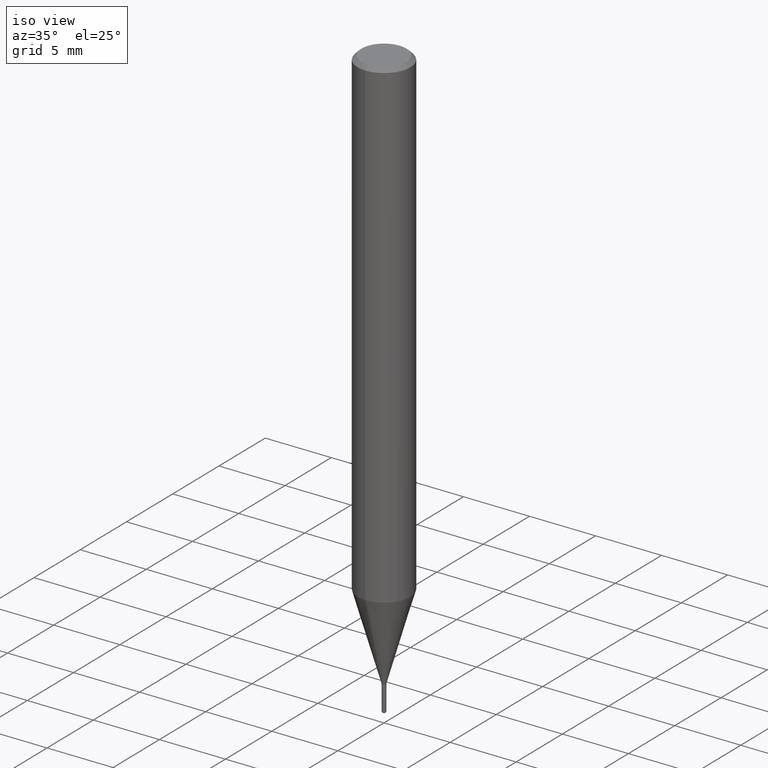
[diagram: clean part render]
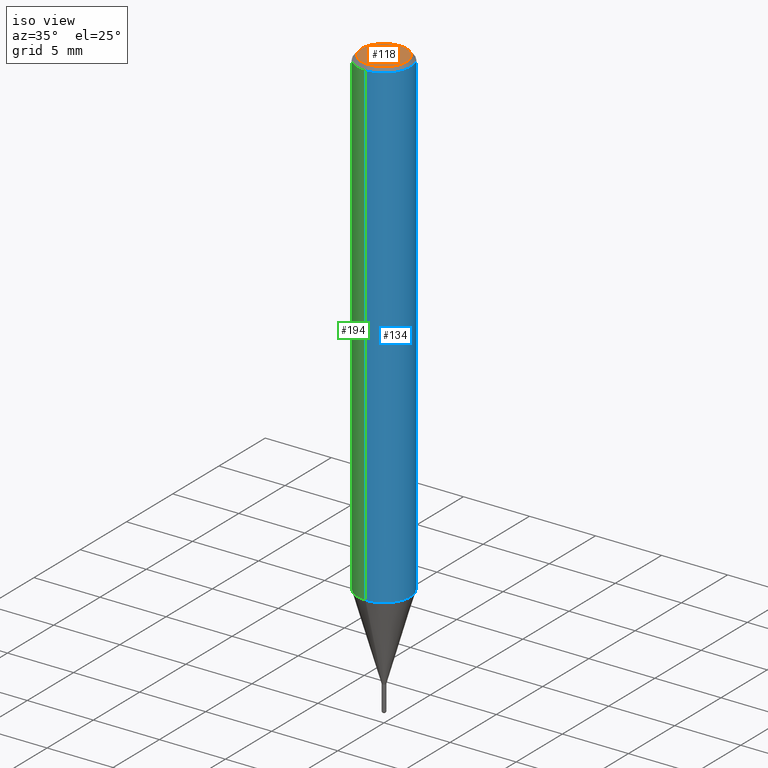
[diagram: same view with three faces highlighted in distinct colors, each labeled with its STEP entity id]
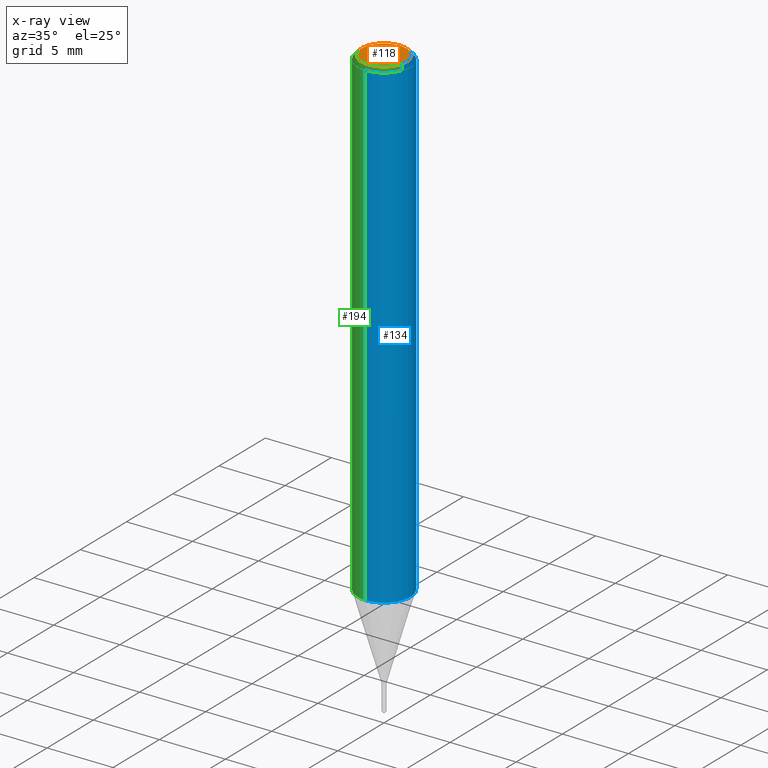
[diagram: x-ray of the same camera — body ghosted, the three highlighted faces saturated]
A machine part, iso view with three faces highlighted in distinct colors.
The next image is the same camera in x-ray (body ghosted, the three faces saturated) — at least one of them is partly hidden behind the body in this view.
Their STEP definitions:

[orange] entity #118 — the highlighted planar face has unit normal (-0, 0, 1).
#104=EDGE_CURVE('',#168,#128,#247,.T.);
#118=ADVANCED_FACE('',(#261),#262,.T.);
#128=VERTEX_POINT('',#275);
#168=VERTEX_POINT('',#317);
#170=EDGE_CURVE('',#128,#168,#319,.T.);
#247=CIRCLE('',#401,1.7);
#261=FACE_OUTER_BOUND('',#420,.T.);
#262=PLANE('',#421);
#275=CARTESIAN_POINT('',(0.0,1.7,0.0));
#317=CARTESIAN_POINT('',(2.08183080149804E-016,-1.7,0.0));
#319=CIRCLE('',#494,1.7);
#401=AXIS2_PLACEMENT_3D('',#577,#578,#579);
#420=EDGE_LOOP('',(#586,#587));
#421=AXIS2_PLACEMENT_3D('',#588,#589,#590);
#494=AXIS2_PLACEMENT_3D('',#649,#650,#651);
#577=CARTESIAN_POINT('',(0.0,0.0,0.0));
#578=DIRECTION('',(0.0,0.0,-1.0));
#579=DIRECTION('',(0.0,1.0,0.0));
#586=ORIENTED_EDGE('',*,*,#170,.F.);
#587=ORIENTED_EDGE('',*,*,#104,.F.);
#588=CARTESIAN_POINT('',(0.0,0.85,0.0));
#589=DIRECTION('',(-0.0,0.0,1.0));
#590=DIRECTION('',(0.0,-1.0,0.0));
#649=CARTESIAN_POINT('',(0.0,0.0,0.0));
#650=DIRECTION('',(0.0,0.0,-1.0));
#651=DIRECTION('',(0.0,1.0,0.0));

[blue] entity #134 — the highlighted cylindrical surface (edge-blend (fillet) strip) has radius 2 mm, axis along (-0, -0, 1).
#112=VERTEX_POINT('',#255);
#116=EDGE_CURVE('',#196,#150,#259,.T.);
#126=EDGE_CURVE('',#150,#112,#273,.T.);
#132=EDGE_CURVE('',#196,#186,#279,.T.);
#134=ADVANCED_FACE('',(#281),#282,.T.);
#138=EDGE_CURVE('',#112,#186,#286,.T.);
#150=VERTEX_POINT('',#299);
#186=VERTEX_POINT('',#337);
#196=VERTEX_POINT('',#351);
#255=CARTESIAN_POINT('',(2.44921270764475E-016,-2.0,-36.531));
#259=LINE('',#417,#418);
#273=CIRCLE('',#432,2.0);
#279=CIRCLE('',#440,2.0);
#281=FACE_OUTER_BOUND('',#442,.T.);
#282=CYLINDRICAL_SURFACE('',#443,2.0);
#286=LINE('',#450,#451);
#299=CARTESIAN_POINT('',(0.0,2.0,-36.531));
#337=CARTESIAN_POINT('',(2.44921270764475E-016,-2.0,-0.299999999999997));
#351=CARTESIAN_POINT('',(0.0,2.0,-0.299999999999997));
#417=CARTESIAN_POINT('',(-2.44921270764475E-016,2.0,-18.4155));
#418=VECTOR('',#584,1.0);
#432=AXIS2_PLACEMENT_3D('',#608,#609,#610);
#440=AXIS2_PLACEMENT_3D('',#614,#615,#616);
#442=EDGE_LOOP('',(#618,#619,#620,#621));
#443=AXIS2_PLACEMENT_3D('',#622,#623,#624);
#450=CARTESIAN_POINT('',(2.44921270764475E-016,-2.0,-18.4155));
#451=VECTOR('',#626,1.0);
#584=DIRECTION('',(0.0,0.0,-1.0));
#608=CARTESIAN_POINT('',(0.0,0.0,-36.531));
#609=DIRECTION('',(0.0,0.0,-1.0));
#610=DIRECTION('',(0.0,1.0,0.0));
#614=CARTESIAN_POINT('',(0.0,0.0,-0.299999999999997));
#615=DIRECTION('',(0.0,0.0,-1.0));
#616=DIRECTION('',(0.0,1.0,0.0));
#618=ORIENTED_EDGE('',*,*,#116,.F.);
#619=ORIENTED_EDGE('',*,*,#132,.T.);
#620=ORIENTED_EDGE('',*,*,#138,.F.);
#621=ORIENTED_EDGE('',*,*,#126,.F.);
#622=CARTESIAN_POINT('',(0.0,0.0,-18.4155));
#623=DIRECTION('',(-0.0,-0.0,1.0));
#624=DIRECTION('',(0.0,1.0,0.0));
#626=DIRECTION('',(-0.0,-0.0,1.0));

[green] entity #194 — the highlighted cylindrical surface (edge-blend (fillet) strip) has radius 2 mm, axis along (-0, -0, 1).
#102=EDGE_CURVE('',#186,#196,#245,.T.);
#112=VERTEX_POINT('',#255);
#116=EDGE_CURVE('',#196,#150,#259,.T.);
#138=EDGE_CURVE('',#112,#186,#286,.T.);
#150=VERTEX_POINT('',#299);
#186=VERTEX_POINT('',#337);
#194=ADVANCED_FACE('',(#348),#349,.T.);
#196=VERTEX_POINT('',#351);
#206=EDGE_CURVE('',#112,#150,#362,.T.);
#245=CIRCLE('',#398,2.0);
#255=CARTESIAN_POINT('',(2.44921270764475E-016,-2.0,-36.531));
#259=LINE('',#417,#418);
#286=LINE('',#450,#451);
#299=CARTESIAN_POINT('',(0.0,2.0,-36.531));
#337=CARTESIAN_POINT('',(2.44921270764475E-016,-2.0,-0.299999999999997));
#348=FACE_OUTER_BOUND('',#527,.T.);
#349=CYLINDRICAL_SURFACE('',#528,2.0);
#351=CARTESIAN_POINT('',(0.0,2.0,-0.299999999999997));
#362=CIRCLE('',#544,2.0);
#398=AXIS2_PLACEMENT_3D('',#574,#575,#576);
#417=CARTESIAN_POINT('',(-2.44921270764475E-016,2.0,-18.4155));
#418=VECTOR('',#584,1.0);
#450=CARTESIAN_POINT('',(2.44921270764475E-016,-2.0,-18.4155));
#451=VECTOR('',#626,1.0);
#527=EDGE_LOOP('',(#698,#699,#700,#701));
#528=AXIS2_PLACEMENT_3D('',#702,#703,#704);
#544=AXIS2_PLACEMENT_3D('',#719,#720,#721);
#574=CARTESIAN_POINT('',(0.0,0.0,-0.299999999999997));
#575=DIRECTION('',(0.0,0.0,-1.0));
#576=DIRECTION('',(0.0,1.0,0.0));
#584=DIRECTION('',(0.0,0.0,-1.0));
#626=DIRECTION('',(-0.0,-0.0,1.0));
#698=ORIENTED_EDGE('',*,*,#116,.T.);
#699=ORIENTED_EDGE('',*,*,#206,.F.);
#700=ORIENTED_EDGE('',*,*,#138,.T.);
#701=ORIENTED_EDGE('',*,*,#102,.T.);
#702=CARTESIAN_POINT('',(0.0,0.0,-18.4155));
#703=DIRECTION('',(-0.0,-0.0,1.0));
#704=DIRECTION('',(0.0,1.0,0.0));
#719=CARTESIAN_POINT('',(0.0,0.0,-36.531));
#720=DIRECTION('',(0.0,0.0,-1.0));
#721=DIRECTION('',(0.0,1.0,0.0));